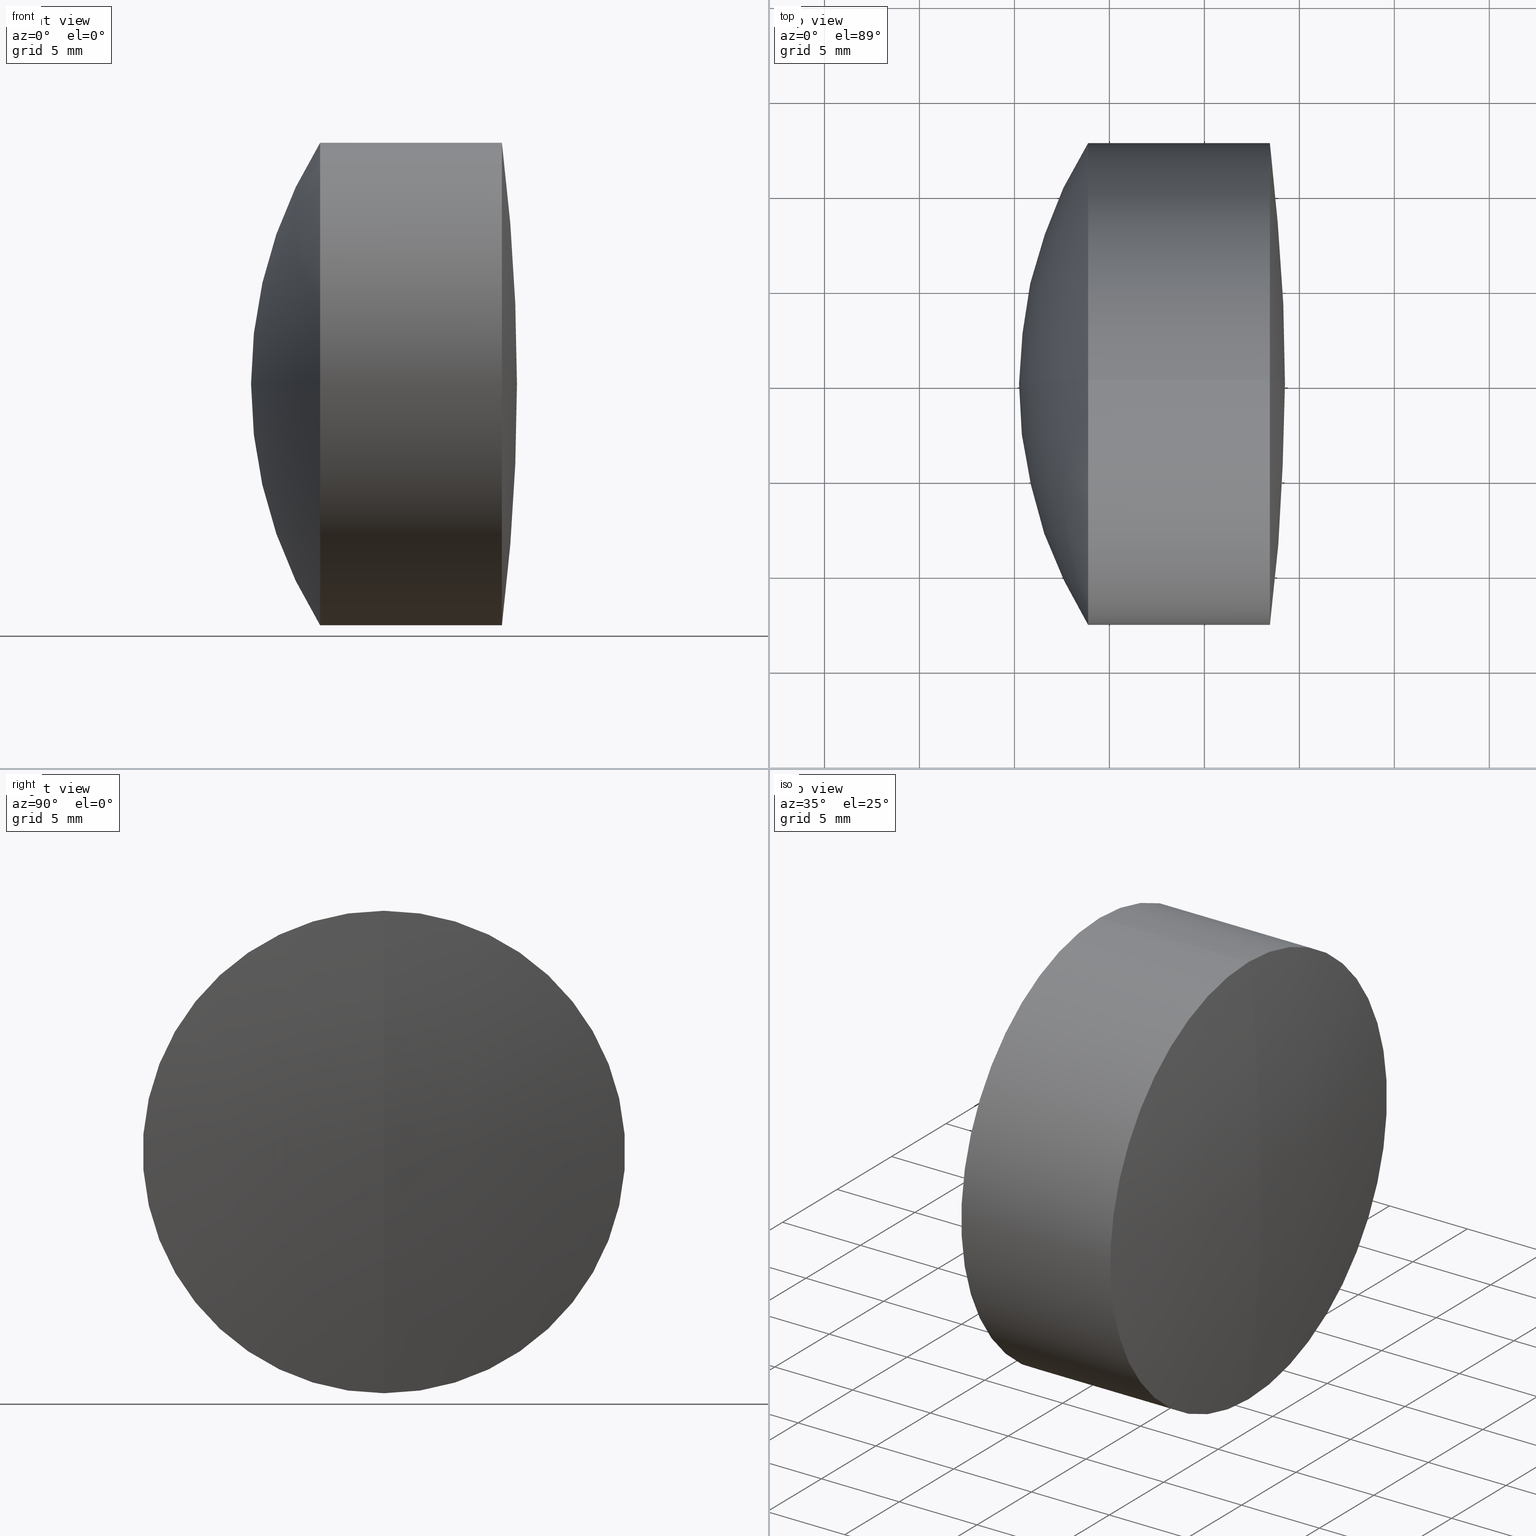
[diagram: canonical four-view strip — front | top / right | iso, engineering-drawing reading convention]
A machine part, canonical four-view strip (front | top / right | iso — engineering-drawing reading convention). The complete STEP part file that produces these views, byte-faithful:
ISO-10303-21;
HEADER;
FILE_DESCRIPTION (( 'STEP AP214' ),
    '1' );
FILE_NAME ('145051.STEP',
    '2019-05-13T06:11:20',
    ( 'user' ),
    ( '΢���й�' ),
    'SwSTEP 2.0',
    'SolidWorks 2016',
    '' );
FILE_SCHEMA (( 'AUTOMOTIVE_DESIGN' ));
ENDSEC;

DATA;
#1 = FILL_AREA_STYLE ('',( #285 ) ) ;
#2 = ORIENTED_EDGE ( 'NONE', *, *, #260, .T. ) ;
#3 = PRODUCT_DEFINITION ( 'δ֪', '', #234, #116 ) ;
#4 = ORIENTED_EDGE ( 'NONE', *, *, #108, .F. ) ;
#5 = ADVANCED_FACE ( 'NONE', ( #294 ), #176, .T. ) ;
#6 = AXIS2_PLACEMENT_3D ( 'NONE', #212, #13, #182 ) ;
#7 = CLOSED_SHELL ( 'NONE', ( #36, #303, #347, #61, #228, #5 ) ) ;
#8 = CYLINDRICAL_SURFACE ( 'NONE', #282, 12.69999999999999900 ) ;
#9 = DIRECTION ( 'NONE',  ( 0.0000000000000000000, 0.0000000000000000000, 1.000000000000000000 ) ) ;
#10 =( NAMED_UNIT ( * ) PLANE_ANGLE_UNIT ( ) SI_UNIT ( $, .RADIAN. ) );
#11 = EDGE_CURVE ( 'NONE', #22, #177, #236, .T. ) ;
#12 = CIRCLE ( 'NONE', #179, 23.99999999999999600 ) ;
#13 = DIRECTION ( 'NONE',  ( 0.0000000000000000000, -1.000000000000000000, 0.0000000000000000000 ) ) ;
#14 = DIRECTION ( 'NONE',  ( 0.0000000000000000000, -1.224646799147353200E-016, 1.000000000000000000 ) ) ;
#15 = CIRCLE ( 'NONE', #157, 12.69999999999998200 ) ;
#16 = ORIENTED_EDGE ( 'NONE', *, *, #174, .F. ) ;
#17 = DIRECTION ( 'NONE',  ( -1.000000000000000000, -0.0000000000000000000, -0.0000000000000000000 ) ) ;
#18 = CARTESIAN_POINT ( 'NONE',  ( 127.1421632578002100, 0.0000000000000000000, 0.0000000000000000000 ) ) ;
#19 = CYLINDRICAL_SURFACE ( 'NONE', #255, 12.69999999999998200 ) ;
#20 = DIRECTION ( 'NONE',  ( 0.0000000000000000000, 0.0000000000000000000, 1.000000000000000000 ) ) ;
#21 = CARTESIAN_POINT ( 'NONE',  ( 229.2421632578002000, 0.0000000000000000000, 6.251821909647237500E-015 ) ) ;
#22 = VERTEX_POINT ( 'NONE', #21 ) ;
#23 = AXIS2_PLACEMENT_3D ( 'NONE', #213, #286, #9 ) ;
#24 = ORIENTED_EDGE ( 'NONE', *, *, #34, .F. ) ;
#25 = DIRECTION ( 'NONE',  ( -1.000000000000000000, -0.0000000000000000000, -0.0000000000000000000 ) ) ;
#26 = ORIENTED_EDGE ( 'NONE', *, *, #137, .F. ) ;
#27 = CARTESIAN_POINT ( 'NONE',  ( 208.1421632578001800, 0.0000000000000000000, -2.168404344971008900E-016 ) ) ;
#28 = AXIS2_PLACEMENT_3D ( 'NONE', #101, #265, #75 ) ;
#29 = CARTESIAN_POINT ( 'NONE',  ( 215.2421632578001700, 0.0000000000000000000, 1.252735716401787200E-015 ) ) ;
#30 = DIRECTION ( 'NONE',  ( 0.0000000000000000000, 0.0000000000000000000, 1.000000000000000000 ) ) ;
#31 = DIRECTION ( 'NONE',  ( -1.000000000000000000, -0.0000000000000000000, -0.0000000000000000000 ) ) ;
#32 = EDGE_LOOP ( 'NONE', ( #4, #306, #97 ) ) ;
#33 = CIRCLE ( 'NONE', #93, 23.99999999999999600 ) ;
#34 = EDGE_CURVE ( 'NONE', #128, #190, #332, .T. ) ;
#35 = AXIS2_PLACEMENT_3D ( 'NONE', #126, #48, #158 ) ;
#36 = ADVANCED_FACE ( 'NONE', ( #231 ), #206, .T. ) ;
#37 = EDGE_LOOP ( 'NONE', ( #79, #274, #141 ) ) ;
#38 = SURFACE_SIDE_STYLE ('',( #189 ) ) ;
#39 = CIRCLE ( 'NONE', #65, 12.69999999999999900 ) ;
#40 =( LENGTH_UNIT ( ) NAMED_UNIT ( * ) SI_UNIT ( .MILLI., .METRE. ) );
#41 = AXIS2_PLACEMENT_3D ( 'NONE', #264, #237, #74 ) ;
#42 = APPLICATION_PROTOCOL_DEFINITION ( 'draft international standard', 'automotive_design', 1998, #71 ) ;
#43 = ORIENTED_EDGE ( 'NONE', *, *, #122, .T. ) ;
#44 = DIRECTION ( 'NONE',  ( -1.000000000000000000, -0.0000000000000000000, -0.0000000000000000000 ) ) ;
#45 = DIRECTION ( 'NONE',  ( -1.000000000000000000, -0.0000000000000000000, -0.0000000000000000000 ) ) ;
#46 = AXIS2_PLACEMENT_3D ( 'NONE', #242, #49, #217 ) ;
#47 = CARTESIAN_POINT ( 'NONE',  ( 208.1421632578001800, 0.0000000000000000000, -2.168404344971008900E-016 ) ) ;
#48 = DIRECTION ( 'NONE',  ( -1.000000000000000000, -0.0000000000000000000, -0.0000000000000000000 ) ) ;
#49 = DIRECTION ( 'NONE',  ( -1.000000000000000000, -0.0000000000000000000, -0.0000000000000000000 ) ) ;
#50 = SHAPE_DEFINITION_REPRESENTATION ( #52, #278 ) ;
#51 = DIRECTION ( 'NONE',  ( -1.000000000000000000, -0.0000000000000000000, -0.0000000000000000000 ) ) ;
#52 = PRODUCT_DEFINITION_SHAPE ( 'NONE', 'NONE',  #3 ) ;
#53 = CARTESIAN_POINT ( 'NONE',  ( 228.4492212547630700, 1.555301434917136500E-015, -12.69999999999998200 ) ) ;
#54 = AXIS2_PLACEMENT_3D ( 'NONE', #298, #25, #251 ) ;
#55 = ORIENTED_EDGE ( 'NONE', *, *, #183, .T. ) ;
#56 = CARTESIAN_POINT ( 'NONE',  ( 222.4082068579018300, 0.0000000000000000000, 0.0000000000000000000 ) ) ;
#57 = CARTESIAN_POINT ( 'NONE',  ( -9.702612178336682500, 1.555301434917138400E-015, -12.69999999999999900 ) ) ;
#58 = DIRECTION ( 'NONE',  ( -1.000000000000000000, -0.0000000000000000000, -0.0000000000000000000 ) ) ;
#59 = CARTESIAN_POINT ( 'NONE',  ( 222.4082068579018300, 0.0000000000000000000, 12.69999999999999900 ) ) ;
#60 = CARTESIAN_POINT ( 'NONE',  ( 208.1421632578001800, 0.0000000000000000000, -2.168404344971008900E-016 ) ) ;
#61 = ADVANCED_FACE ( 'NONE', ( #99 ), #218, .T. ) ;
#62 = EDGE_LOOP ( 'NONE', ( #252, #90, #16 ) ) ;
#63 = AXIS2_PLACEMENT_3D ( 'NONE', #60, #249, #30 ) ;
#64 = EDGE_LOOP ( 'NONE', ( #168, #211, #85, #305 ) ) ;
#65 = AXIS2_PLACEMENT_3D ( 'NONE', #262, #272, #135 ) ;
#66 = CIRCLE ( 'NONE', #6, 19.10000000000001600 ) ;
#67 = SPHERICAL_SURFACE ( 'NONE', #86, 19.10000000000001200 ) ;
#68 =( NAMED_UNIT ( * ) SI_UNIT ( $, .STERADIAN. ) SOLID_ANGLE_UNIT ( ) );
#69 = EDGE_CURVE ( 'NONE', #190, #128, #163, .T. ) ;
#70 = VERTEX_POINT ( 'NONE', #269 ) ;
#71 = APPLICATION_CONTEXT ( 'automotive_design' ) ;
#72 =( GEOMETRIC_REPRESENTATION_CONTEXT ( 3 ) GLOBAL_UNCERTAINTY_ASSIGNED_CONTEXT ( ( #117 ) ) GLOBAL_UNIT_ASSIGNED_CONTEXT ( ( #302, #139, #88 ) ) REPRESENTATION_CONTEXT ( 'NONE', 'WORKASPACE' ) );
#73 = CIRCLE ( 'NONE', #28, 19.10000000000001200 ) ;
#74 = DIRECTION ( 'NONE',  ( 0.0000000000000000000, 0.0000000000000000000, 1.000000000000000000 ) ) ;
#75 = DIRECTION ( 'NONE',  ( 0.0000000000000000000, 0.0000000000000000000, -1.000000000000000000 ) ) ;
#76 = SURFACE_STYLE_FILL_AREA ( #1 ) ;
#77 =( NAMED_UNIT ( * ) SI_UNIT ( $, .STERADIAN. ) SOLID_ANGLE_UNIT ( ) );
#78 = CARTESIAN_POINT ( 'NONE',  ( 218.8777334842955900, 0.0000000000000000000, 12.69999999999999900 ) ) ;
#79 = ORIENTED_EDGE ( 'NONE', *, *, #148, .F. ) ;
#80 = DIRECTION ( 'NONE',  ( 0.0000000000000000000, 0.0000000000000000000, -1.000000000000000000 ) ) ;
#81 = MECHANICAL_DESIGN_GEOMETRIC_PRESENTATION_REPRESENTATION (  '', ( #203 ), #226 ) ;
#82 = CARTESIAN_POINT ( 'NONE',  ( 222.4082068579018300, 1.555301434917138400E-015, -12.69999999999999900 ) ) ;
#83 = DIRECTION ( 'NONE',  ( 0.0000000000000000000, 1.000000000000000000, 0.0000000000000000000 ) ) ;
#84 = ORIENTED_EDGE ( 'NONE', *, *, #342, .F. ) ;
#85 = ORIENTED_EDGE ( 'NONE', *, *, #215, .T. ) ;
#86 = AXIS2_PLACEMENT_3D ( 'NONE', #100, #185, #334 ) ;
#87 = ORIENTED_EDGE ( 'NONE', *, *, #34, .T. ) ;
#88 =( NAMED_UNIT ( * ) SI_UNIT ( $, .STERADIAN. ) SOLID_ANGLE_UNIT ( ) );
#89 = ADVANCED_FACE ( 'NONE', ( #343 ), #159, .T. ) ;
#90 = ORIENTED_EDGE ( 'NONE', *, *, #148, .T. ) ;
#91 = EDGE_CURVE ( 'NONE', #128, #229, #33, .T. ) ;
#92 = CIRCLE ( 'NONE', #118, 12.69999999999998200 ) ;
#93 = AXIS2_PLACEMENT_3D ( 'NONE', #105, #268, #80 ) ;
#94 = LINE ( 'NONE', #277, #339 ) ;
#95 = FACE_OUTER_BOUND ( 'NONE', #309, .T. ) ;
#96 = LINE ( 'NONE', #57, #220 ) ;
#97 = ORIENTED_EDGE ( 'NONE', *, *, #201, .F. ) ;
#98 = CARTESIAN_POINT ( 'NONE',  ( 0.0000000000000000000, 0.0000000000000000000, 0.0000000000000000000 ) ) ;
#99 = FACE_OUTER_BOUND ( 'NONE', #310, .T. ) ;
#100 = CARTESIAN_POINT ( 'NONE',  ( 208.1421632578001800, 0.0000000000000000000, -2.168404344971008900E-016 ) ) ;
#101 = CARTESIAN_POINT ( 'NONE',  ( 208.1421632578001800, 0.0000000000000000000, -2.168404344971008900E-016 ) ) ;
#102 = EDGE_LOOP ( 'NONE', ( #84, #299, #318 ) ) ;
#103 =( LENGTH_UNIT ( ) NAMED_UNIT ( * ) SI_UNIT ( .MILLI., .METRE. ) );
#104 = AXIS2_PLACEMENT_3D ( 'NONE', #27, #275, #164 ) ;
#105 = CARTESIAN_POINT ( 'NONE',  ( 239.2421632578001700, 0.0000000000000000000, -2.168404425750365600E-016 ) ) ;
#106 = ORIENTED_EDGE ( 'NONE', *, *, #11, .F. ) ;
#107 = VERTEX_POINT ( 'NONE', #82 ) ;
#108 = EDGE_CURVE ( 'NONE', #22, #284, #311, .T. ) ;
#109 = AXIS2_PLACEMENT_3D ( 'NONE', #130, #83, #20 ) ;
#110 = EDGE_LOOP ( 'NONE', ( #87, #230, #245 ) ) ;
#111 = CARTESIAN_POINT ( 'NONE',  ( 228.4492212547630700, 0.0000000000000000000, 0.0000000000000000000 ) ) ;
#112 = DIRECTION ( 'NONE',  ( 0.0000000000000000000, 0.0000000000000000000, 1.000000000000000000 ) ) ;
#113 = ORIENTED_EDGE ( 'NONE', *, *, #122, .F. ) ;
#114 = ADVANCED_FACE ( 'NONE', ( #241 ), #328, .T. ) ;
#115 = ORIENTED_EDGE ( 'NONE', *, *, #208, .T. ) ;
#116 = PRODUCT_DEFINITION_CONTEXT ( 'detailed design', #120, 'design' ) ;
#117 = UNCERTAINTY_MEASURE_WITH_UNIT (LENGTH_MEASURE( 1.000000000000000100E-005 ), #302, 'distance_accuracy_value', 'NONE');
#118 = AXIS2_PLACEMENT_3D ( 'NONE', #197, #31, #112 ) ;
#119 = VERTEX_POINT ( 'NONE', #291 ) ;
#120 = APPLICATION_CONTEXT ( 'automotive_design' ) ;
#121 = DIRECTION ( 'NONE',  ( 1.000000000000000000, 0.0000000000000000000, 0.0000000000000000000 ) ) ;
#122 = EDGE_CURVE ( 'NONE', #284, #195, #193, .T. ) ;
#123 = AXIS2_PLACEMENT_3D ( 'NONE', #18, #340, #187 ) ;
#124 = FILL_AREA_STYLE ('',( #205 ) ) ;
#125 = SURFACE_SIDE_STYLE ('',( #169 ) ) ;
#126 = CARTESIAN_POINT ( 'NONE',  ( -0.5519199926577972300, 0.0000000000000000000, 0.0000000000000000000 ) ) ;
#127 = CYLINDRICAL_SURFACE ( 'NONE', #145, 12.69999999999999900 ) ;
#128 = VERTEX_POINT ( 'NONE', #78 ) ;
#129 = DIRECTION ( 'NONE',  ( 0.0000000000000000000, -1.000000000000000000, 0.0000000000000000000 ) ) ;
#130 = CARTESIAN_POINT ( 'NONE',  ( 208.1421632578001800, 0.0000000000000000000, -2.168404344971008900E-016 ) ) ;
#131 = DIRECTION ( 'NONE',  ( 0.0000000000000000000, 0.0000000000000000000, 1.000000000000000000 ) ) ;
#132 = MECHANICAL_DESIGN_GEOMETRIC_PRESENTATION_REPRESENTATION (  '', ( #253 ), #256 ) ;
#133 = ORIENTED_EDGE ( 'NONE', *, *, #201, .T. ) ;
#134 = CARTESIAN_POINT ( 'NONE',  ( -9.702612178336682500, 0.0000000000000000000, 0.0000000000000000000 ) ) ;
#135 = DIRECTION ( 'NONE',  ( 0.0000000000000000000, 0.0000000000000000000, 1.000000000000000000 ) ) ;
#136 = DIRECTION ( 'NONE',  ( 0.0000000000000000000, 1.000000000000000000, 0.0000000000000000000 ) ) ;
#137 = EDGE_CURVE ( 'NONE', #190, #229, #12, .T. ) ;
#138 = DIRECTION ( 'NONE',  ( 0.0000000000000000000, 0.0000000000000000000, 1.000000000000000000 ) ) ;
#139 =( NAMED_UNIT ( * ) PLANE_ANGLE_UNIT ( ) SI_UNIT ( $, .RADIAN. ) );
#140 = LINE ( 'NONE', #324, #167 ) ;
#141 = ORIENTED_EDGE ( 'NONE', *, *, #260, .F. ) ;
#142 = EDGE_CURVE ( 'NONE', #119, #70, #73, .T. ) ;
#143 = AXIS2_PLACEMENT_3D ( 'NONE', #186, #337, #155 ) ;
#144 = ORIENTED_EDGE ( 'NONE', *, *, #142, .F. ) ;
#145 = AXIS2_PLACEMENT_3D ( 'NONE', #134, #170, #138 ) ;
#146 = PRESENTATION_STYLE_ASSIGNMENT (( #290 ) ) ;
#147 = CARTESIAN_POINT ( 'NONE',  ( 227.2421632578002000, 0.0000000000000000000, 9.526972586886224600E-016 ) ) ;
#148 = EDGE_CURVE ( 'NONE', #345, #200, #66, .T. ) ;
#149 = ORIENTED_EDGE ( 'NONE', *, *, #108, .T. ) ;
#150 = PRESENTATION_LAYER_ASSIGNMENT (  '', '', ( #253 ) ) ;
#151 = CARTESIAN_POINT ( 'NONE',  ( 218.8777334842955900, 1.555301434917138400E-015, -12.69999999999999900 ) ) ;
#152 = DIRECTION ( 'NONE',  ( -0.0000000000000000000, 1.000000000000000000, 1.224646799147353200E-016 ) ) ;
#153 = FILL_AREA_STYLE_COLOUR ( '', #240 ) ;
#154 = COLOUR_RGB ( '',1.000000000000000000, 1.000000000000000000, 1.000000000000000000 ) ;
#155 = DIRECTION ( 'NONE',  ( 0.0000000000000000000, -1.224646799147353200E-016, 1.000000000000000000 ) ) ;
#156 = UNCERTAINTY_MEASURE_WITH_UNIT (LENGTH_MEASURE( 1.000000000000000100E-005 ), #40, 'distance_accuracy_value', 'NONE');
#157 = AXIS2_PLACEMENT_3D ( 'NONE', #111, #301, #344 ) ;
#158 = DIRECTION ( 'NONE',  ( 0.0000000000000000000, 0.0000000000000000000, 1.000000000000000000 ) ) ;
#159 = SPHERICAL_SURFACE ( 'NONE', #123, 102.0999999999999900 ) ;
#160 = PRODUCT_RELATED_PRODUCT_CATEGORY ( 'part', '', ( #258 ) ) ;
#161 = DIRECTION ( 'NONE',  ( 0.0000000000000000000, 0.0000000000000000000, 1.000000000000000000 ) ) ;
#162 = DIRECTION ( 'NONE',  ( 0.0000000000000000000, 1.000000000000000000, 0.0000000000000000000 ) ) ;
#163 = CIRCLE ( 'NONE', #46, 12.69999999999999900 ) ;
#164 = DIRECTION ( 'NONE',  ( 0.0000000000000000000, -1.224646799147353200E-016, 1.000000000000000000 ) ) ;
#165 = AXIS2_PLACEMENT_3D ( 'NONE', #319, #129, #296 ) ;
#166 = DIRECTION ( 'NONE',  ( -1.000000000000000000, -0.0000000000000000000, -0.0000000000000000000 ) ) ;
#167 = VECTOR ( 'NONE', #346, 1000.000000000000000 ) ;
#168 = ORIENTED_EDGE ( 'NONE', *, *, #323, .F. ) ;
#169 = SURFACE_STYLE_FILL_AREA ( #314 ) ;
#170 = DIRECTION ( 'NONE',  ( -1.000000000000000000, -0.0000000000000000000, -0.0000000000000000000 ) ) ;
#171 = CARTESIAN_POINT ( 'NONE',  ( -9.702612178336682500, 0.0000000000000000000, 0.0000000000000000000 ) ) ;
#172 = SURFACE_STYLE_USAGE ( .BOTH. , #325 ) ;
#173 = ADVANCED_FACE ( 'NONE', ( #259 ), #19, .T. ) ;
#174 = EDGE_CURVE ( 'NONE', #107, #200, #39, .T. ) ;
#175 = ORIENTED_EDGE ( 'NONE', *, *, #191, .T. ) ;
#176 = SPHERICAL_SURFACE ( 'NONE', #196, 19.10000000000001600 ) ;
#177 = VERTEX_POINT ( 'NONE', #333 ) ;
#178 = FACE_OUTER_BOUND ( 'NONE', #102, .T. ) ;
#179 = AXIS2_PLACEMENT_3D ( 'NONE', #335, #152, #312 ) ;
#180 = ORIENTED_EDGE ( 'NONE', *, *, #323, .T. ) ;
#181 = EDGE_CURVE ( 'NONE', #345, #107, #247, .T. ) ;
#182 = DIRECTION ( 'NONE',  ( 0.0000000000000000000, 0.0000000000000000000, -1.000000000000000000 ) ) ;
#183 = EDGE_CURVE ( 'NONE', #177, #284, #227, .T. ) ;
#184 = EDGE_LOOP ( 'NONE', ( #144, #239, #175 ) ) ;
#185 = DIRECTION ( 'NONE',  ( 0.0000000000000000000, 1.000000000000000000, 0.0000000000000000000 ) ) ;
#186 = CARTESIAN_POINT ( 'NONE',  ( 127.1421632578002100, 0.0000000000000000000, 0.0000000000000000000 ) ) ;
#187 = DIRECTION ( 'NONE',  ( 0.0000000000000000000, 0.0000000000000000000, 1.000000000000000000 ) ) ;
#188 = AXIS2_PLACEMENT_3D ( 'NONE', #56, #166, #322 ) ;
#189 = SURFACE_STYLE_FILL_AREA ( #124 ) ;
#190 = VERTEX_POINT ( 'NONE', #151 ) ;
#191 = EDGE_CURVE ( 'NONE', #195, #70, #92, .T. ) ;
#192 = MANIFOLD_SOLID_BREP ( '��ת3', #279 ) ;
#193 = LINE ( 'NONE', #315, #341 ) ;
#194 = DIRECTION ( 'NONE',  ( -1.000000000000000000, -0.0000000000000000000, -0.0000000000000000000 ) ) ;
#195 = VERTEX_POINT ( 'NONE', #320 ) ;
#196 = AXIS2_PLACEMENT_3D ( 'NONE', #221, #162, #246 ) ;
#197 = CARTESIAN_POINT ( 'NONE',  ( 222.4082068579018300, 0.0000000000000000000, 0.0000000000000000000 ) ) ;
#198 = ADVANCED_FACE ( 'NONE', ( #288 ), #233, .F. ) ;
#199 = AXIS2_PLACEMENT_3D ( 'NONE', #224, #136, #297 ) ;
#200 = VERTEX_POINT ( 'NONE', #59 ) ;
#201 = EDGE_CURVE ( 'NONE', #284, #177, #15, .T. ) ;
#202 = CIRCLE ( 'NONE', #232, 19.10000000000001200 ) ;
#203 = STYLED_ITEM ( 'NONE', ( #146 ), #316 ) ;
#204 = SPHERICAL_SURFACE ( 'NONE', #199, 102.0999999999999900 ) ;
#205 = FILL_AREA_STYLE_COLOUR ( '', #154 ) ;
#206 = SPHERICAL_SURFACE ( 'NONE', #109, 19.10000000000001600 ) ;
#207 = SURFACE_STYLE_USAGE ( .BOTH. , #38 ) ;
#208 = EDGE_CURVE ( 'NONE', #177, #70, #140, .T. ) ;
#209 =( LENGTH_UNIT ( ) NAMED_UNIT ( * ) SI_UNIT ( .MILLI., .METRE. ) );
#210 =( NAMED_UNIT ( * ) SI_UNIT ( $, .STERADIAN. ) SOLID_ANGLE_UNIT ( ) );
#211 = ORIENTED_EDGE ( 'NONE', *, *, #174, .T. ) ;
#212 = CARTESIAN_POINT ( 'NONE',  ( 208.1421632578001800, 0.0000000000000000000, -2.168404344971008900E-016 ) ) ;
#213 = CARTESIAN_POINT ( 'NONE',  ( 239.2421632578001700, 0.0000000000000000000, -2.168404425750365600E-016 ) ) ;
#214 = CARTESIAN_POINT ( 'NONE',  ( -0.5519199926577972300, 0.0000000000000000000, 0.0000000000000000000 ) ) ;
#215 = EDGE_CURVE ( 'NONE', #200, #128, #94, .T. ) ;
#216 = CIRCLE ( 'NONE', #41, 12.69999999999998200 ) ;
#217 = DIRECTION ( 'NONE',  ( 0.0000000000000000000, 0.0000000000000000000, 1.000000000000000000 ) ) ;
#218 = SPHERICAL_SURFACE ( 'NONE', #238, 23.99999999999999600 ) ;
#219 = DIRECTION ( 'NONE',  ( 0.0000000000000000000, 0.0000000000000000000, 1.000000000000000000 ) ) ;
#220 = VECTOR ( 'NONE', #45, 1000.000000000000000 ) ;
#221 = CARTESIAN_POINT ( 'NONE',  ( 208.1421632578001800, 0.0000000000000000000, -2.168404344971008900E-016 ) ) ;
#222 = ORIENTED_EDGE ( 'NONE', *, *, #91, .T. ) ;
#223 = PRESENTATION_LAYER_ASSIGNMENT (  '', '', ( #336 ) ) ;
#224 = CARTESIAN_POINT ( 'NONE',  ( 127.1421632578002100, 0.0000000000000000000, 0.0000000000000000000 ) ) ;
#225 = UNCERTAINTY_MEASURE_WITH_UNIT (LENGTH_MEASURE( 1.000000000000000100E-005 ), #209, 'distance_accuracy_value', 'NONE');
#226 =( GEOMETRIC_REPRESENTATION_CONTEXT ( 3 ) GLOBAL_UNCERTAINTY_ASSIGNED_CONTEXT ( ( #304 ) ) GLOBAL_UNIT_ASSIGNED_CONTEXT ( ( #103, #266, #77 ) ) REPRESENTATION_CONTEXT ( 'NONE', 'WORKASPACE' ) );
#227 = CIRCLE ( 'NONE', #54, 12.69999999999998200 ) ;
#228 = ADVANCED_FACE ( 'NONE', ( #273 ), #127, .T. ) ;
#229 = VERTEX_POINT ( 'NONE', #29 ) ;
#230 = ORIENTED_EDGE ( 'NONE', *, *, #137, .T. ) ;
#231 = FACE_OUTER_BOUND ( 'NONE', #37, .T. ) ;
#232 = AXIS2_PLACEMENT_3D ( 'NONE', #47, #267, #14 ) ;
#233 = SPHERICAL_SURFACE ( 'NONE', #63, 19.10000000000001200 ) ;
#234 = PRODUCT_DEFINITION_FORMATION_WITH_SPECIFIED_SOURCE ( '�κ�', '', #258, .NOT_KNOWN. ) ;
#235 = ORIENTED_EDGE ( 'NONE', *, *, #191, .F. ) ;
#236 = CIRCLE ( 'NONE', #165, 102.0999999999999900 ) ;
#237 = DIRECTION ( 'NONE',  ( -1.000000000000000000, -0.0000000000000000000, -0.0000000000000000000 ) ) ;
#238 = AXIS2_PLACEMENT_3D ( 'NONE', #317, #270, #161 ) ;
#239 = ORIENTED_EDGE ( 'NONE', *, *, #342, .T. ) ;
#240 = COLOUR_RGB ( '',1.000000000000000000, 1.000000000000000000, 1.000000000000000000 ) ;
#241 = FACE_OUTER_BOUND ( 'NONE', #244, .T. ) ;
#242 = CARTESIAN_POINT ( 'NONE',  ( 218.8777334842955900, 0.0000000000000000000, 0.0000000000000000000 ) ) ;
#243 = CARTESIAN_POINT ( 'NONE',  ( 218.8777334842955900, 0.0000000000000000000, 0.0000000000000000000 ) ) ;
#244 = EDGE_LOOP ( 'NONE', ( #55, #43, #257, #292 ) ) ;
#245 = ORIENTED_EDGE ( 'NONE', *, *, #91, .F. ) ;
#246 = DIRECTION ( 'NONE',  ( 0.0000000000000000000, 0.0000000000000000000, 1.000000000000000000 ) ) ;
#247 = CIRCLE ( 'NONE', #104, 19.10000000000001600 ) ;
#248 = EDGE_LOOP ( 'NONE', ( #106, #149, #326 ) ) ;
#249 = DIRECTION ( 'NONE',  ( 0.0000000000000000000, 1.000000000000000000, 0.0000000000000000000 ) ) ;
#250 = ADVANCED_FACE ( 'NONE', ( #280 ), #204, .T. ) ;
#251 = DIRECTION ( 'NONE',  ( 0.0000000000000000000, 0.0000000000000000000, 1.000000000000000000 ) ) ;
#252 = ORIENTED_EDGE ( 'NONE', *, *, #181, .F. ) ;
#253 = STYLED_ITEM ( 'NONE', ( #300 ), #278 ) ;
#254 = PRESENTATION_STYLE_ASSIGNMENT (( #172 ) ) ;
#255 = AXIS2_PLACEMENT_3D ( 'NONE', #214, #44, #287 ) ;
#256 =( GEOMETRIC_REPRESENTATION_CONTEXT ( 3 ) GLOBAL_UNCERTAINTY_ASSIGNED_CONTEXT ( ( #156 ) ) GLOBAL_UNIT_ASSIGNED_CONTEXT ( ( #40, #10, #68 ) ) REPRESENTATION_CONTEXT ( 'NONE', 'WORKASPACE' ) );
#257 = ORIENTED_EDGE ( 'NONE', *, *, #329, .F. ) ;
#258 = PRODUCT ( '145051', '145051', '', ( #283 ) ) ;
#259 = FACE_OUTER_BOUND ( 'NONE', #263, .T. ) ;
#260 = EDGE_CURVE ( 'NONE', #200, #107, #313, .T. ) ;
#261 = DIRECTION ( 'NONE',  ( 0.0000000000000000000, 0.0000000000000000000, 1.000000000000000000 ) ) ;
#262 = CARTESIAN_POINT ( 'NONE',  ( 222.4082068579018300, 0.0000000000000000000, 0.0000000000000000000 ) ) ;
#263 = EDGE_LOOP ( 'NONE', ( #113, #133, #115, #235 ) ) ;
#264 = CARTESIAN_POINT ( 'NONE',  ( 222.4082068579018300, 0.0000000000000000000, 0.0000000000000000000 ) ) ;
#265 = DIRECTION ( 'NONE',  ( 0.0000000000000000000, -1.000000000000000000, 0.0000000000000000000 ) ) ;
#266 =( NAMED_UNIT ( * ) PLANE_ANGLE_UNIT ( ) SI_UNIT ( $, .RADIAN. ) );
#267 = DIRECTION ( 'NONE',  ( -0.0000000000000000000, 1.000000000000000000, 1.224646799147353200E-016 ) ) ;
#268 = DIRECTION ( 'NONE',  ( 0.0000000000000000000, -1.000000000000000000, 0.0000000000000000000 ) ) ;
#269 = CARTESIAN_POINT ( 'NONE',  ( 222.4082068579018300, 0.0000000000000000000, 12.69999999999998200 ) ) ;
#270 = DIRECTION ( 'NONE',  ( 0.0000000000000000000, 1.000000000000000000, 0.0000000000000000000 ) ) ;
#271 = AXIS2_PLACEMENT_3D ( 'NONE', #98, #261, #121 ) ;
#272 = DIRECTION ( 'NONE',  ( -1.000000000000000000, -0.0000000000000000000, -0.0000000000000000000 ) ) ;
#273 = FACE_OUTER_BOUND ( 'NONE', #64, .T. ) ;
#274 = ORIENTED_EDGE ( 'NONE', *, *, #181, .T. ) ;
#275 = DIRECTION ( 'NONE',  ( -0.0000000000000000000, 1.000000000000000000, 1.224646799147353200E-016 ) ) ;
#276 = MECHANICAL_DESIGN_GEOMETRIC_PRESENTATION_REPRESENTATION (  '', ( #336 ), #72 ) ;
#277 = CARTESIAN_POINT ( 'NONE',  ( -9.702612178336682500, 0.0000000000000000000, 12.69999999999999900 ) ) ;
#278 = ADVANCED_BREP_SHAPE_REPRESENTATION ( '145051', ( #316, #192, #271 ), #331 ) ;
#279 = CLOSED_SHELL ( 'NONE', ( #89, #114, #198, #327, #173, #250 ) ) ;
#280 = FACE_OUTER_BOUND ( 'NONE', #32, .T. ) ;
#281 = APPLICATION_PROTOCOL_DEFINITION ( 'draft international standard', 'automotive_design', 1998, #120 ) ;
#282 = AXIS2_PLACEMENT_3D ( 'NONE', #171, #194, #131 ) ;
#283 = PRODUCT_CONTEXT ( 'NONE', #71, 'mechanical' ) ;
#284 = VERTEX_POINT ( 'NONE', #53 ) ;
#285 = FILL_AREA_STYLE_COLOUR ( '', #295 ) ;
#286 = DIRECTION ( 'NONE',  ( 0.0000000000000000000, 1.000000000000000000, 0.0000000000000000000 ) ) ;
#287 = DIRECTION ( 'NONE',  ( 0.0000000000000000000, 0.0000000000000000000, 1.000000000000000000 ) ) ;
#288 = FACE_OUTER_BOUND ( 'NONE', #184, .T. ) ;
#289 = AXIS2_PLACEMENT_3D ( 'NONE', #243, #51, #219 ) ;
#290 = SURFACE_STYLE_USAGE ( .BOTH. , #125 ) ;
#291 = CARTESIAN_POINT ( 'NONE',  ( 227.2421632578002000, 0.0000000000000000000, 9.526972586886222600E-016 ) ) ;
#292 = ORIENTED_EDGE ( 'NONE', *, *, #208, .F. ) ;
#293 = SPHERICAL_SURFACE ( 'NONE', #23, 23.99999999999999600 ) ;
#294 = FACE_OUTER_BOUND ( 'NONE', #62, .T. ) ;
#295 = COLOUR_RGB ( '',1.000000000000000000, 1.000000000000000000, 1.000000000000000000 ) ;
#296 = DIRECTION ( 'NONE',  ( 0.0000000000000000000, 0.0000000000000000000, -1.000000000000000000 ) ) ;
#297 = DIRECTION ( 'NONE',  ( 0.0000000000000000000, 0.0000000000000000000, 1.000000000000000000 ) ) ;
#298 = CARTESIAN_POINT ( 'NONE',  ( 228.4492212547630700, 0.0000000000000000000, 0.0000000000000000000 ) ) ;
#299 = ORIENTED_EDGE ( 'NONE', *, *, #142, .T. ) ;
#300 = PRESENTATION_STYLE_ASSIGNMENT (( #207 ) ) ;
#301 = DIRECTION ( 'NONE',  ( -1.000000000000000000, -0.0000000000000000000, -0.0000000000000000000 ) ) ;
#302 =( LENGTH_UNIT ( ) NAMED_UNIT ( * ) SI_UNIT ( .MILLI., .METRE. ) );
#303 = ADVANCED_FACE ( 'NONE', ( #95 ), #8, .T. ) ;
#304 = UNCERTAINTY_MEASURE_WITH_UNIT (LENGTH_MEASURE( 1.000000000000000100E-005 ), #103, 'distance_accuracy_value', 'NONE');
#305 = ORIENTED_EDGE ( 'NONE', *, *, #69, .F. ) ;
#306 = ORIENTED_EDGE ( 'NONE', *, *, #11, .T. ) ;
#307 = PRESENTATION_LAYER_ASSIGNMENT (  '', '', ( #203 ) ) ;
#308 =( NAMED_UNIT ( * ) PLANE_ANGLE_UNIT ( ) SI_UNIT ( $, .RADIAN. ) );
#309 = EDGE_LOOP ( 'NONE', ( #2, #180, #24, #330 ) ) ;
#310 = EDGE_LOOP ( 'NONE', ( #26, #321, #222 ) ) ;
#311 = CIRCLE ( 'NONE', #143, 102.0999999999999900 ) ;
#312 = DIRECTION ( 'NONE',  ( 0.0000000000000000000, -1.224646799147353200E-016, 1.000000000000000000 ) ) ;
#313 = CIRCLE ( 'NONE', #188, 12.69999999999999900 ) ;
#314 = FILL_AREA_STYLE ('',( #153 ) ) ;
#315 = CARTESIAN_POINT ( 'NONE',  ( -0.5519199926577972300, 1.555301434917136500E-015, -12.69999999999998200 ) ) ;
#316 = MANIFOLD_SOLID_BREP ( '��ת1', #7 ) ;
#317 = CARTESIAN_POINT ( 'NONE',  ( 239.2421632578001700, 0.0000000000000000000, -2.168404425750365600E-016 ) ) ;
#318 = ORIENTED_EDGE ( 'NONE', *, *, #329, .T. ) ;
#319 = CARTESIAN_POINT ( 'NONE',  ( 127.1421632578002100, 0.0000000000000000000, 0.0000000000000000000 ) ) ;
#320 = CARTESIAN_POINT ( 'NONE',  ( 222.4082068579018300, 1.555301434917136700E-015, -12.69999999999998200 ) ) ;
#321 = ORIENTED_EDGE ( 'NONE', *, *, #69, .T. ) ;
#322 = DIRECTION ( 'NONE',  ( 0.0000000000000000000, 0.0000000000000000000, 1.000000000000000000 ) ) ;
#323 = EDGE_CURVE ( 'NONE', #107, #190, #96, .T. ) ;
#324 = CARTESIAN_POINT ( 'NONE',  ( -0.5519199926577972300, 0.0000000000000000000, 12.69999999999998200 ) ) ;
#325 = SURFACE_SIDE_STYLE ('',( #76 ) ) ;
#326 = ORIENTED_EDGE ( 'NONE', *, *, #183, .F. ) ;
#327 = ADVANCED_FACE ( 'NONE', ( #178 ), #67, .F. ) ;
#328 = CYLINDRICAL_SURFACE ( 'NONE', #35, 12.69999999999998200 ) ;
#329 = EDGE_CURVE ( 'NONE', #70, #195, #216, .T. ) ;
#330 = ORIENTED_EDGE ( 'NONE', *, *, #215, .F. ) ;
#331 =( GEOMETRIC_REPRESENTATION_CONTEXT ( 3 ) GLOBAL_UNCERTAINTY_ASSIGNED_CONTEXT ( ( #225 ) ) GLOBAL_UNIT_ASSIGNED_CONTEXT ( ( #209, #308, #210 ) ) REPRESENTATION_CONTEXT ( 'NONE', 'WORKASPACE' ) );
#332 = CIRCLE ( 'NONE', #289, 12.69999999999999900 ) ;
#333 = CARTESIAN_POINT ( 'NONE',  ( 228.4492212547630700, 0.0000000000000000000, 12.69999999999998200 ) ) ;
#334 = DIRECTION ( 'NONE',  ( 0.0000000000000000000, 0.0000000000000000000, 1.000000000000000000 ) ) ;
#335 = CARTESIAN_POINT ( 'NONE',  ( 239.2421632578001700, 0.0000000000000000000, -2.168404425750365600E-016 ) ) ;
#336 = STYLED_ITEM ( 'NONE', ( #254 ), #192 ) ;
#337 = DIRECTION ( 'NONE',  ( -0.0000000000000000000, 1.000000000000000000, 1.224646799147353200E-016 ) ) ;
#338 = FACE_OUTER_BOUND ( 'NONE', #110, .T. ) ;
#339 = VECTOR ( 'NONE', #58, 1000.000000000000000 ) ;
#340 = DIRECTION ( 'NONE',  ( 0.0000000000000000000, 1.000000000000000000, 0.0000000000000000000 ) ) ;
#341 = VECTOR ( 'NONE', #17, 1000.000000000000000 ) ;
#342 = EDGE_CURVE ( 'NONE', #119, #195, #202, .T. ) ;
#343 = FACE_OUTER_BOUND ( 'NONE', #248, .T. ) ;
#344 = DIRECTION ( 'NONE',  ( 0.0000000000000000000, 0.0000000000000000000, 1.000000000000000000 ) ) ;
#345 = VERTEX_POINT ( 'NONE', #147 ) ;
#346 = DIRECTION ( 'NONE',  ( -1.000000000000000000, -0.0000000000000000000, -0.0000000000000000000 ) ) ;
#347 = ADVANCED_FACE ( 'NONE', ( #338 ), #293, .T. ) ;
ENDSEC;
END-ISO-10303-21;
